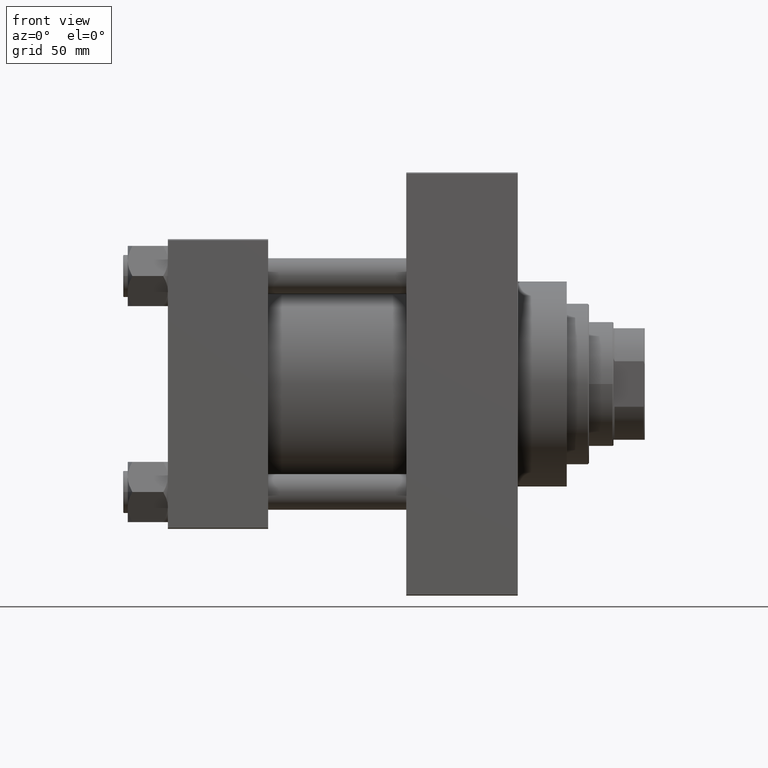
[diagram: clean part render]
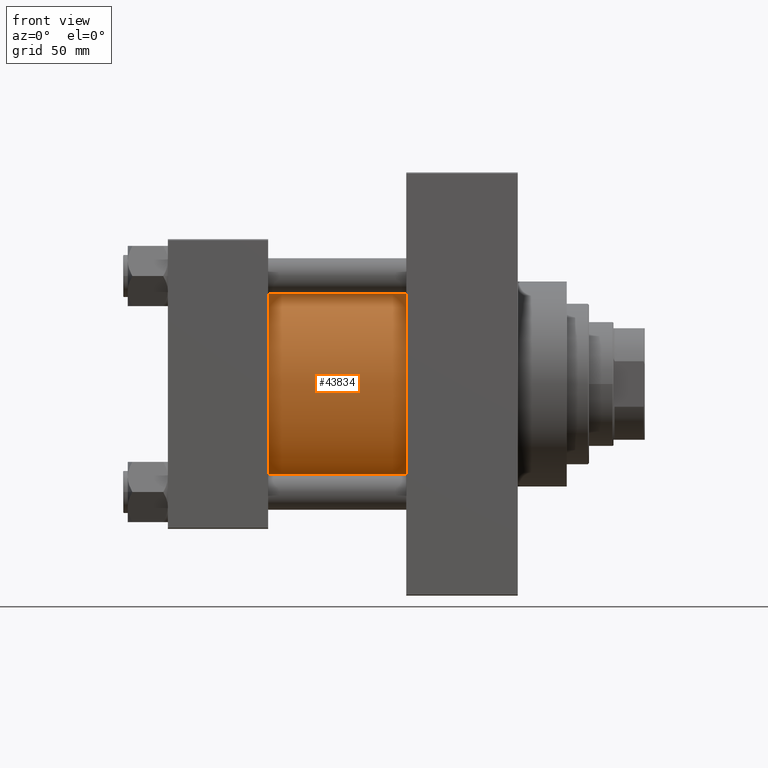
[diagram: same view with one face highlighted and labeled with its STEP entity id]
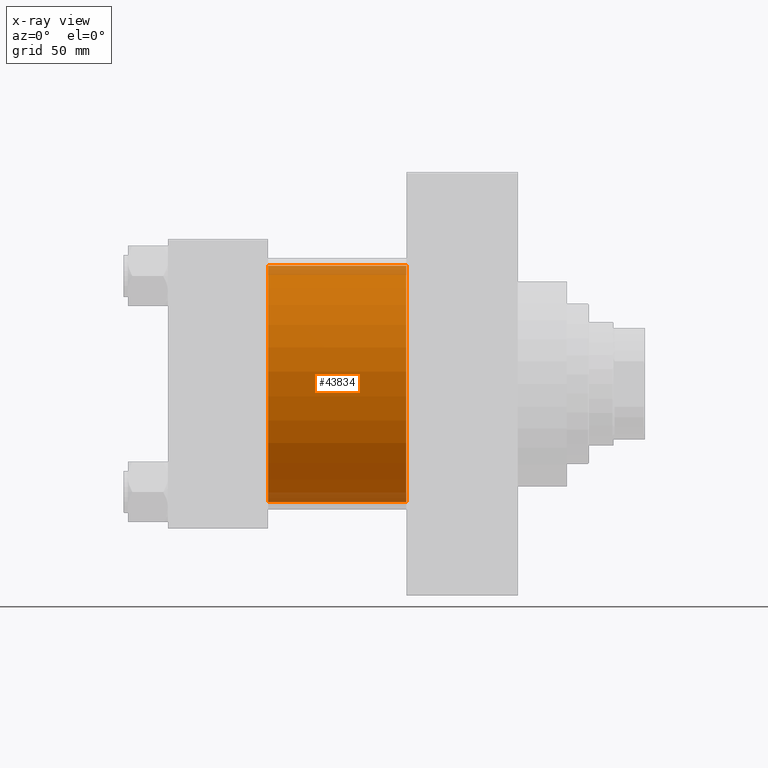
[diagram: x-ray of the same camera — body ghosted, the highlighted face saturated]
A machine part, front view. The second image highlights one B-rep face of the part: STEP entity #43834.
The next image is the same camera in x-ray: the body ghosted, the highlighted face saturated — about 8% of this face is hidden behind the body in this view.
In plain terms, the highlighted cylindrical surface (partial cylindrical patch) has radius 53 mm, axis along (-1, -0, -0).
Its self-contained STEP definition (entity closure, byte-faithful):
#508 = VECTOR ( 'NONE', #44178, 1000.000000000000000 ) ;
#1081 = DIRECTION ( 'NONE',  ( 0.000000000000000000, 0.000000000000000000, 1.000000000000000000 ) ) ;
#1652 = ORIENTED_EDGE ( 'NONE', *, *, #12229, .T. ) ;
#2102 = CIRCLE ( 'NONE', #19161, 53.00000000000000711 ) ;
#2109 = CIRCLE ( 'NONE', #38353, 53.00000000000000711 ) ;
#6313 = EDGE_CURVE ( 'NONE', #17805, #28852, #23737, .T. ) ;
#8328 = FACE_OUTER_BOUND ( 'NONE', #18498, .T. ) ;
#8584 = ORIENTED_EDGE ( 'NONE', *, *, #35661, .T. ) ;
#8869 = VECTOR ( 'NONE', #41359, 1000.000000000000000 ) ;
#9280 = CYLINDRICAL_SURFACE ( 'NONE', #47716, 53.00000000000000711 ) ;
#9514 = CARTESIAN_POINT ( 'NONE',  ( 45.00000000000000000, -2.602085213965210642E-15, 53.00000000000000711 ) ) ;
#11315 = VERTEX_POINT ( 'NONE', #27639 ) ;
#12229 = EDGE_CURVE ( 'NONE', #44075, #28852, #2102, .T. ) ;
#14383 = CARTESIAN_POINT ( 'NONE',  ( 107.0000000000000000, 3.888542821515762466E-15, -53.00000000000000711 ) ) ;
#14590 = CARTESIAN_POINT ( 'NONE',  ( 45.00000000000000000, -2.602085213965210642E-15, 0.000000000000000000 ) ) ;
#14734 = CARTESIAN_POINT ( 'NONE',  ( 107.0000000000000000, -2.602085213965210642E-15, 53.00000000000000711 ) ) ;
#17805 = VERTEX_POINT ( 'NONE', #14383 ) ;
#18498 = EDGE_LOOP ( 'NONE', ( #39936, #26045, #8584, #1652 ) ) ;
#19161 = AXIS2_PLACEMENT_3D ( 'NONE', #14590, #36547, #29329 ) ;
#22323 = DIRECTION ( 'NONE',  ( 1.000000000000000000, 0.000000000000000000, 0.000000000000000000 ) ) ;
#23070 = CARTESIAN_POINT ( 'NONE',  ( 107.0000000000000000, -2.602085213965210642E-15, 0.000000000000000000 ) ) ;
#23737 = LINE ( 'NONE', #38455, #8869 ) ;
#26045 = ORIENTED_EDGE ( 'NONE', *, *, #40973, .F. ) ;
#26172 = DIRECTION ( 'NONE',  ( 0.000000000000000000, 0.000000000000000000, -1.000000000000000000 ) ) ;
#27639 = CARTESIAN_POINT ( 'NONE',  ( 107.0000000000000000, -2.602085213965210642E-15, 53.00000000000000711 ) ) ;
#28852 = VERTEX_POINT ( 'NONE', #44582 ) ;
#29329 = DIRECTION ( 'NONE',  ( 0.000000000000000000, 0.000000000000000000, 1.000000000000000000 ) ) ;
#30314 = DIRECTION ( 'NONE',  ( -1.000000000000000000, -0.000000000000000000, -0.000000000000000000 ) ) ;
#33339 = LINE ( 'NONE', #14734, #508 ) ;
#35661 = EDGE_CURVE ( 'NONE', #11315, #44075, #33339, .T. ) ;
#36547 = DIRECTION ( 'NONE',  ( 1.000000000000000000, -0.000000000000000000, 0.000000000000000000 ) ) ;
#38353 = AXIS2_PLACEMENT_3D ( 'NONE', #40896, #22323, #26172 ) ;
#38455 = CARTESIAN_POINT ( 'NONE',  ( 107.0000000000000000, 3.888542821515762466E-15, -53.00000000000000711 ) ) ;
#39936 = ORIENTED_EDGE ( 'NONE', *, *, #6313, .F. ) ;
#40896 = CARTESIAN_POINT ( 'NONE',  ( 107.0000000000000000, -2.602085213965210642E-15, 0.000000000000000000 ) ) ;
#40973 = EDGE_CURVE ( 'NONE', #11315, #17805, #2109, .T. ) ;
#41359 = DIRECTION ( 'NONE',  ( -1.000000000000000000, -0.000000000000000000, -0.000000000000000000 ) ) ;
#43834 = ADVANCED_FACE ( 'NONE', ( #8328 ), #9280, .T. ) ;
#44075 = VERTEX_POINT ( 'NONE', #9514 ) ;
#44178 = DIRECTION ( 'NONE',  ( -1.000000000000000000, -0.000000000000000000, -0.000000000000000000 ) ) ;
#44582 = CARTESIAN_POINT ( 'NONE',  ( 45.00000000000000000, 3.888542821515762466E-15, -53.00000000000000711 ) ) ;
#47716 = AXIS2_PLACEMENT_3D ( 'NONE', #23070, #30314, #1081 ) ;